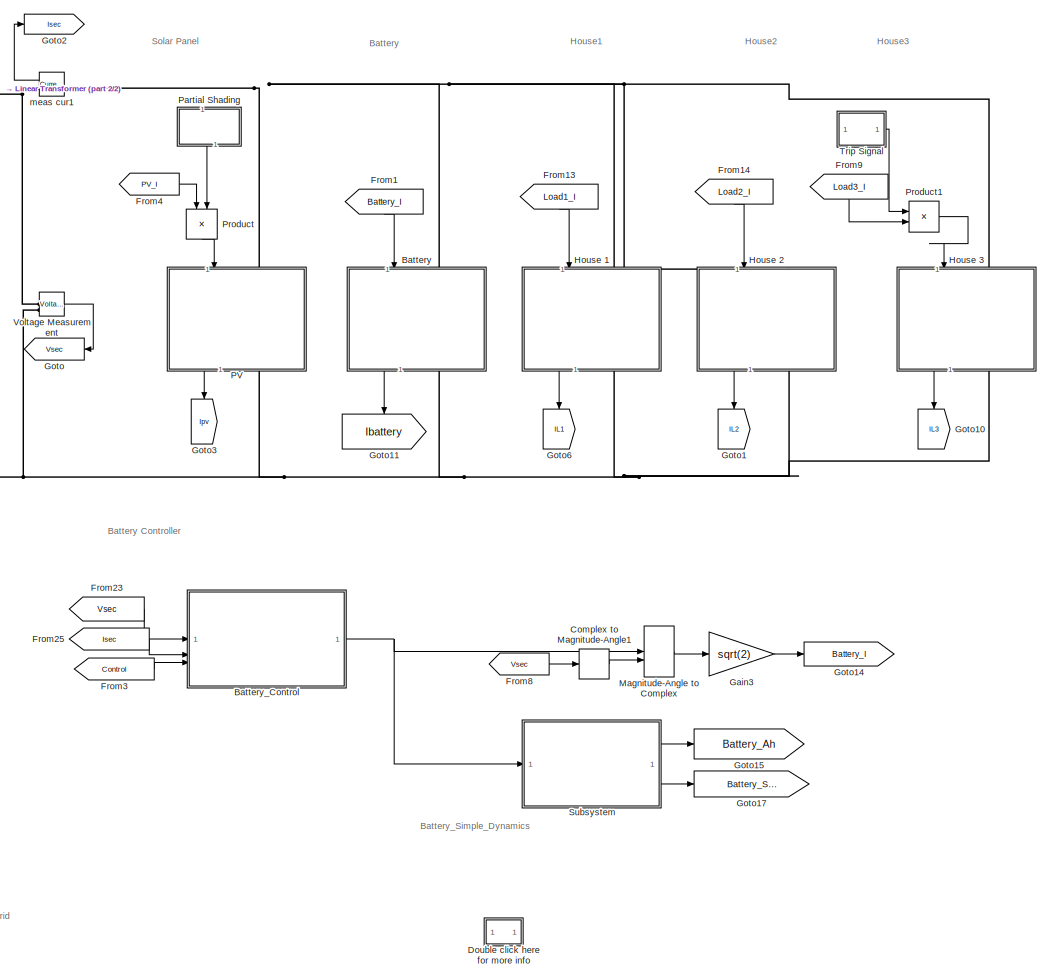
[diagram: root canvas - part 1/2, right side, full height]
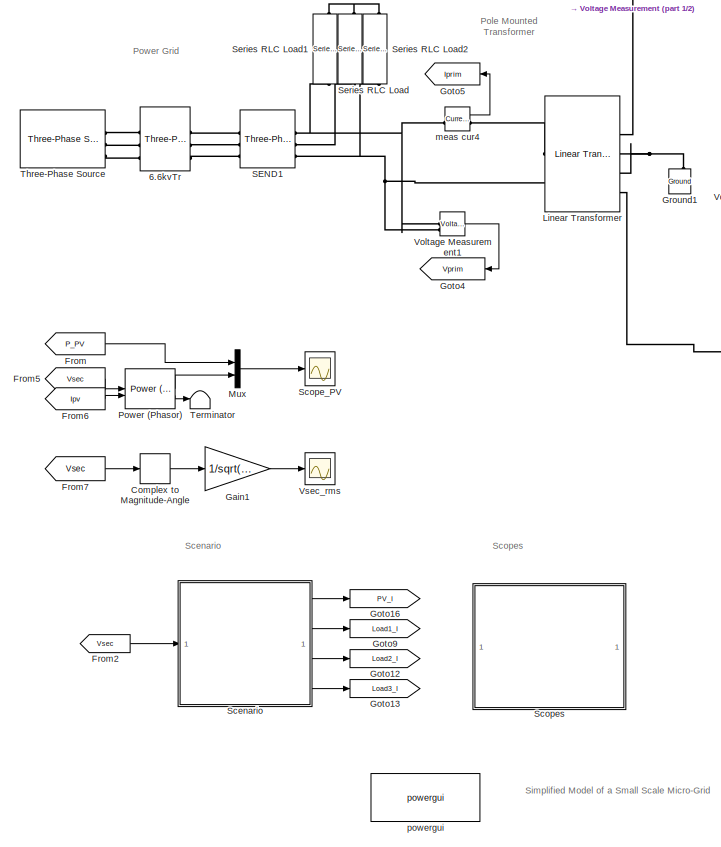
[diagram: root canvas - part 2/2, left side, full height]
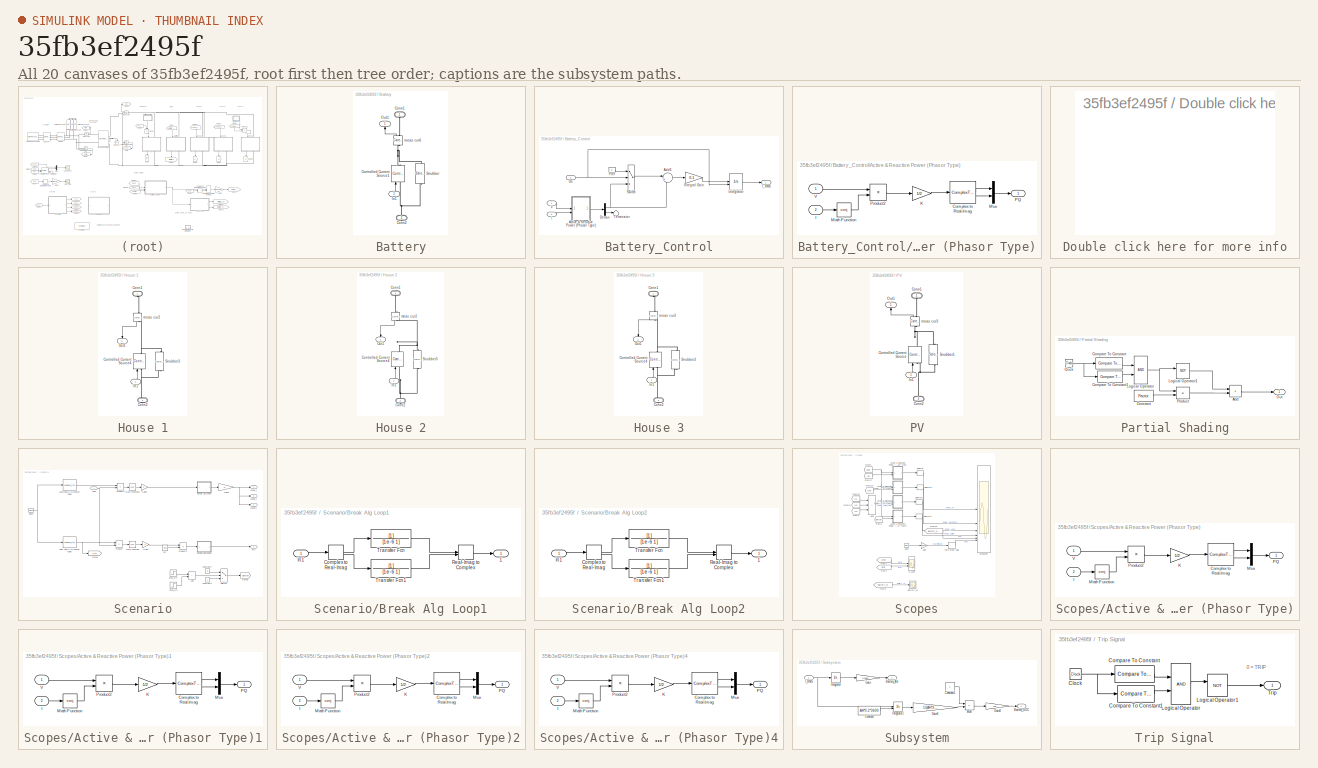
[diagram: thumbnail index - all 20 canvases of the model, root first then tree order]
MODEL slx_35fb3ef2495f
KIND model
CONFIG AbsTol = auto
CONFIG EnableMultiTasking = off
CONFIG FixedStep = 1/(1000)
CONFIG MaxStep = 60
CONFIG MinStep = auto
CONFIG PreLoadFcn = load('SmallScaleMicroGridSolarLoadData24h.mat')\n
CONFIG RelTol = 1e-4
CONFIG SampleTimeConstraint = Unconstrained
CONFIG SolverName = ode23tb
CONFIG StartTime = 0.0
CONFIG StopTime = 24*60*60
BLOCK [Reference] 6.6kvTr  REF=spsThreePhaseTransformerTwoWindingsLib/Three-Phase
Transformer
(Two Windings)
  SourceBlock = spsThreePhaseTransformerTwoWindingsLib/Three-Phase\nTransformer\n(Two Windings)
  SourceType = Three-Phase Transformer (Two Windings)
BLOCK [SubSystem] Battery
  NameLocation = left
BLOCK [PMIOPort] Battery/Conn1
  NameLocation = right
  Side = Left
BLOCK [PMIOPort] Battery/Conn2
  NameLocation = left
  Port = 2
  Side = Right
BLOCK [Reference] Battery/Controlled Current Source1  REF=spsControlledCurrentSourceLib/Controlled Current Source
  NameLocation = right
  SourceBlock = spsControlledCurrentSourceLib/Controlled Current Source
  SourceType = Controlled Current Source
BLOCK [Inport] Battery/In1
  NameLocation = right
BLOCK [Outport] Battery/Out1
  NameLocation = right
  VectorParamsAs1DForOutWhenUnconnected = off
BLOCK [Reference] Battery/Snubber  REF=spsSeriesRLCBranchLib/Series RLC Branch
  NameLocation = right
  SourceBlock = spsSeriesRLCBranchLib/Series RLC Branch
  SourceType = Series RLC Branch
BLOCK [Reference] Battery/meas cur6  REF=spsCurrentMeasurementLib/Current Measurement
  NameLocation = left
  SourceBlock = spsCurrentMeasurementLib/Current Measurement
  SourceType = Current Measurement
BLOCK [SubSystem] Battery_Control
BLOCK [SubSystem] Battery_Control/Active & Reactive Power (Phasor Type)
  DialogController = POWERSYS.PowerSysDialog
BLOCK [ComplexToRealImag] Battery_Control/Active & Reactive Power (Phasor Type)/Complex to Real-Imag
BLOCK [Inport] Battery_Control/Active & Reactive Power (Phasor Type)/I
  Port = 2
BLOCK [Gain] Battery_Control/Active & Reactive Power (Phasor Type)/K
  Gain = 1/2
  OutDataTypeStr = Inherit: Same as input
  ParamDataTypeStr = Inherit: Same as input
  SaturateOnIntegerOverflow = on
BLOCK [Math] Battery_Control/Active & Reactive Power (Phasor Type)/Math Function
  Operator = conj
  SignedPower = on
BLOCK [Mux] Battery_Control/Active & Reactive Power (Phasor Type)/Mux
  DisplayOption = bar
  Inputs = 2
BLOCK [Outport] Battery_Control/Active & Reactive Power (Phasor Type)/PQ
  VectorParamsAs1DForOutWhenUnconnected = off
BLOCK [Product] Battery_Control/Active & Reactive Power (Phasor Type)/Product2
  InputSameDT = on
  OutDataTypeStr = Inherit: Same as first input
  SaturateOnIntegerOverflow = on
BLOCK [Inport] Battery_Control/Active & Reactive Power (Phasor Type)/V
BLOCK [Sum] Battery_Control/Add6
  Inputs = |+-
BLOCK [Demux] Battery_Control/Demux
  Outputs = 2
BLOCK [Inport] Battery_Control/I
  Port = 2
BLOCK [Outport] Battery_Control/I_RMS
  InitialOutput = 0
  OutputWhenDisabled = reset
  VectorParamsAs1DForOutWhenUnconnected = off
BLOCK [Gain] Battery_Control/Integral Gain
  Gain = 0.1
BLOCK [Integrator] Battery_Control/Integrator
  ExternalReset = falling
  LimitOutput = on
  LowerSaturationLimit = -50
  UpperSaturationLimit = 50
BLOCK [Inport] Battery_Control/On
  Port = 3
BLOCK [Constant] Battery_Control/Pref
  NameLocation = top
  Value = 0
BLOCK [Switch] Battery_Control/Switch
  InputSameDT = off
  SaturateOnIntegerOverflow = off
  Threshold = 0.5
BLOCK [Terminator] Battery_Control/Terminator
BLOCK [Inport] Battery_Control/V
BLOCK [ComplexToMagnitudeAngle] Complex to Magnitude-Angle
  Output = Magnitude
BLOCK [ComplexToMagnitudeAngle] Complex to Magnitude-Angle1
  Output = Angle
BLOCK [SubSystem] Double click here for more info
  OpenFcn = showExample("simscapeelectricalsps/SmallScaleMicroGridExample")
BLOCK [From] From
  GotoTag = P_PV
  TagVisibility = global
BLOCK [From] From1
  GotoTag = Battery_I
  NameLocation = left
  TagVisibility = global
BLOCK [From] From13
  GotoTag = Load1_I
  NameLocation = left
  TagVisibility = global
BLOCK [From] From14
  GotoTag = Load2_I
  NameLocation = left
  TagVisibility = global
BLOCK [From] From2
  GotoTag = Vsec
  TagVisibility = global
BLOCK [From] From23
  GotoTag = Vsec
  TagVisibility = global
BLOCK [From] From25
  GotoTag = Isec
  TagVisibility = global
BLOCK [From] From3
  GotoTag = Control
  TagVisibility = global
BLOCK [From] From4
  GotoTag = PV_I
  TagVisibility = global
BLOCK [From] From5
  GotoTag = Vsec
  NameLocation = top
  TagVisibility = global
BLOCK [From] From6
  GotoTag = Ipv
  NameLocation = top
  TagVisibility = global
BLOCK [From] From7
  GotoTag = Vsec
  TagVisibility = global
BLOCK [From] From8
  GotoTag = Vsec
  NameLocation = top
  TagVisibility = global
BLOCK [From] From9
  GotoTag = Load3_I
  NameLocation = left
  TagVisibility = global
BLOCK [Gain] Gain1
  Gain = 1/sqrt(2)
BLOCK [Gain] Gain3
  Gain = sqrt(2)
BLOCK [Goto] Goto
  GotoTag = Vsec
  TagVisibility = global
BLOCK [Goto] Goto1
  GotoTag = IL2
  NameLocation = left
  TagVisibility = global
BLOCK [Goto] Goto10
  GotoTag = IL3
  NameLocation = left
  TagVisibility = global
BLOCK [Goto] Goto11
  GotoTag = Ibattery
  NameLocation = left
  TagVisibility = global
BLOCK [Goto] Goto12
  GotoTag = Load2_I
  TagVisibility = global
BLOCK [Goto] Goto13
  GotoTag = Load3_I
  TagVisibility = global
BLOCK [Goto] Goto14
  GotoTag = Battery_I
  TagVisibility = global
BLOCK [Goto] Goto15
  GotoTag = Battery_Ah
  TagVisibility = global
BLOCK [Goto] Goto16
  GotoTag = PV_I
  TagVisibility = global
BLOCK [Goto] Goto17
  GotoTag = Battery_SOC
  TagVisibility = global
BLOCK [Goto] Goto2
  GotoTag = Isec
  TagVisibility = global
BLOCK [Goto] Goto3
  GotoTag = Ipv
  NameLocation = left
  TagVisibility = global
BLOCK [Goto] Goto4
  GotoTag = Vprim
  TagVisibility = global
BLOCK [Goto] Goto5
  GotoTag = Iprim
  TagVisibility = global
BLOCK [Goto] Goto6
  GotoTag = IL1
  NameLocation = left
  TagVisibility = global
BLOCK [Goto] Goto9
  GotoTag = Load1_I
  TagVisibility = global
BLOCK [Reference] Ground1  REF=spsGroundLib/Ground
  NameLocation = right
  SourceBlock = spsGroundLib/Ground
  SourceType = Ground
BLOCK [SubSystem] House 1
  NameLocation = right
BLOCK [PMIOPort] House 1/Conn1
  NameLocation = right
  Side = Left
BLOCK [PMIOPort] House 1/Conn2
  NameLocation = left
  Port = 2
  Side = Right
BLOCK [Reference] House 1/Controlled Current Source4  REF=spsControlledCurrentSourceLib/Controlled Current Source
  NameLocation = right
  SourceBlock = spsControlledCurrentSourceLib/Controlled Current Source
  SourceType = Controlled Current Source
BLOCK [Inport] House 1/In1
  NameLocation = right
BLOCK [Outport] House 1/Out1
  NameLocation = right
  VectorParamsAs1DForOutWhenUnconnected = off
BLOCK [Reference] House 1/Snubber3  REF=spsSeriesRLCBranchLib/Series RLC Branch
  NameLocation = right
  SourceBlock = spsSeriesRLCBranchLib/Series RLC Branch
  SourceType = Series RLC Branch
BLOCK [Reference] House 1/meas cur2  REF=spsCurrentMeasurementLib/Current Measurement
  NameLocation = right
  SourceBlock = spsCurrentMeasurementLib/Current Measurement
  SourceType = Current Measurement
BLOCK [SubSystem] House 2
  NameLocation = right
BLOCK [PMIOPort] House 2/Conn1
  NameLocation = right
  Side = Left
BLOCK [PMIOPort] House 2/Conn2
  NameLocation = left
  Port = 2
  Side = Right
BLOCK [Reference] House 2/Controlled Current Source4  REF=spsControlledCurrentSourceLib/Controlled Current Source
  NameLocation = right
  SourceBlock = spsControlledCurrentSourceLib/Controlled Current Source
  SourceType = Controlled Current Source
BLOCK [Inport] House 2/In1
  NameLocation = right
BLOCK [Outport] House 2/Out1
  NameLocation = right
  VectorParamsAs1DForOutWhenUnconnected = off
BLOCK [Reference] House 2/Snubber3  REF=spsSeriesRLCBranchLib/Series RLC Branch
  NameLocation = right
  SourceBlock = spsSeriesRLCBranchLib/Series RLC Branch
  SourceType = Series RLC Branch
BLOCK [Reference] House 2/meas cur2  REF=spsCurrentMeasurementLib/Current Measurement
  NameLocation = right
  SourceBlock = spsCurrentMeasurementLib/Current Measurement
  SourceType = Current Measurement
BLOCK [SubSystem] House 3
  NameLocation = right
BLOCK [PMIOPort] House 3/Conn1
  NameLocation = right
  Side = Left
BLOCK [PMIOPort] House 3/Conn2
  NameLocation = left
  Port = 2
  Side = Right
BLOCK [Reference] House 3/Controlled Current Source4  REF=spsControlledCurrentSourceLib/Controlled Current Source
  NameLocation = right
  SourceBlock = spsControlledCurrentSourceLib/Controlled Current Source
  SourceType = Controlled Current Source
BLOCK [Inport] House 3/In1
  NameLocation = right
BLOCK [Outport] House 3/Out1
  NameLocation = right
  VectorParamsAs1DForOutWhenUnconnected = off
BLOCK [Reference] House 3/Snubber3  REF=spsSeriesRLCBranchLib/Series RLC Branch
  NameLocation = right
  SourceBlock = spsSeriesRLCBranchLib/Series RLC Branch
  SourceType = Series RLC Branch
BLOCK [Reference] House 3/meas cur2  REF=spsCurrentMeasurementLib/Current Measurement
  NameLocation = right
  SourceBlock = spsCurrentMeasurementLib/Current Measurement
  SourceType = Current Measurement
BLOCK [Reference] Linear Transformer  REF=spsLinearTransformerLib/Linear Transformer
  SourceBlock = spsLinearTransformerLib/Linear Transformer
  SourceType = Linear Transformer
BLOCK [MagnitudeAngleToComplex] Magnitude-Angle to Complex
BLOCK [Mux] Mux
  DisplayOption = bar
  Inputs = 2
BLOCK [SubSystem] PV
  NameLocation = left
BLOCK [PMIOPort] PV/Conn1
  NameLocation = right
  Side = Left
BLOCK [PMIOPort] PV/Conn2
  NameLocation = left
  Port = 2
  Side = Right
BLOCK [Reference] PV/Controlled Current Source  REF=spsControlledCurrentSourceLib/Controlled Current Source
  NameLocation = right
  SourceBlock = spsControlledCurrentSourceLib/Controlled Current Source
  SourceType = Controlled Current Source
BLOCK [Inport] PV/In1
  NameLocation = right
BLOCK [Outport] PV/Out1
  NameLocation = right
  VectorParamsAs1DForOutWhenUnconnected = off
BLOCK [Reference] PV/Snubber1  REF=spsSeriesRLCBranchLib/Series RLC Branch
  NameLocation = right
  SourceBlock = spsSeriesRLCBranchLib/Series RLC Branch
  SourceType = Series RLC Branch
BLOCK [Reference] PV/meas cur3  REF=spsCurrentMeasurementLib/Current Measurement
  NameLocation = left
  SourceBlock = spsCurrentMeasurementLib/Current Measurement
  SourceType = Current Measurement
BLOCK [SubSystem] Partial Shading
  NameLocation = left
BLOCK [Sum] Partial Shading/Add
  IconShape = rectangular
BLOCK [Clock] Partial Shading/Clock
  Decimation = 1
BLOCK [Reference] Partial Shading/Compare To Constant  REF=simulink/Logic and Bit
Operations/Compare
To Constant
  SourceBlock = simulink/Logic and Bit\nOperations/Compare\nTo Constant
  SourceType = Compare To Constant
BLOCK [Reference] Partial Shading/Compare To Constant1  REF=simulink/Logic and Bit
Operations/Compare
To Constant
  SourceBlock = simulink/Logic and Bit\nOperations/Compare\nTo Constant
  SourceType = Compare To Constant
BLOCK [Constant] Partial Shading/Constant
  Value = Factor
BLOCK [Logic] Partial Shading/Logical Operator
  AllPortsSameDT = off
  OutDataTypeStr = float('double')
BLOCK [Logic] Partial Shading/Logical Operator1
  AllPortsSameDT = off
  Operator = NOT
  OutDataTypeStr = float('double')
BLOCK [Outport] Partial Shading/Out
  VectorParamsAs1DForOutWhenUnconnected = off
BLOCK [Product] Partial Shading/Product
BLOCK [Reference] Power (Phasor)  REF=spsPowerPhasorLib/Power
(Phasor)
  SourceBlock = spsPowerPhasorLib/Power\n(Phasor)
  SourceType = Power (Phasor)
BLOCK [Product] Product
  NameLocation = left
BLOCK [Product] Product1
BLOCK [Reference] SEND1  REF=spsThreePhasePISectionLineLib/Three-Phase
PI Section Line
  AttributesFormatString = \n
  SourceBlock = spsThreePhasePISectionLineLib/Three-Phase\nPI Section Line
  SourceType = Three-Phase PI Section Line
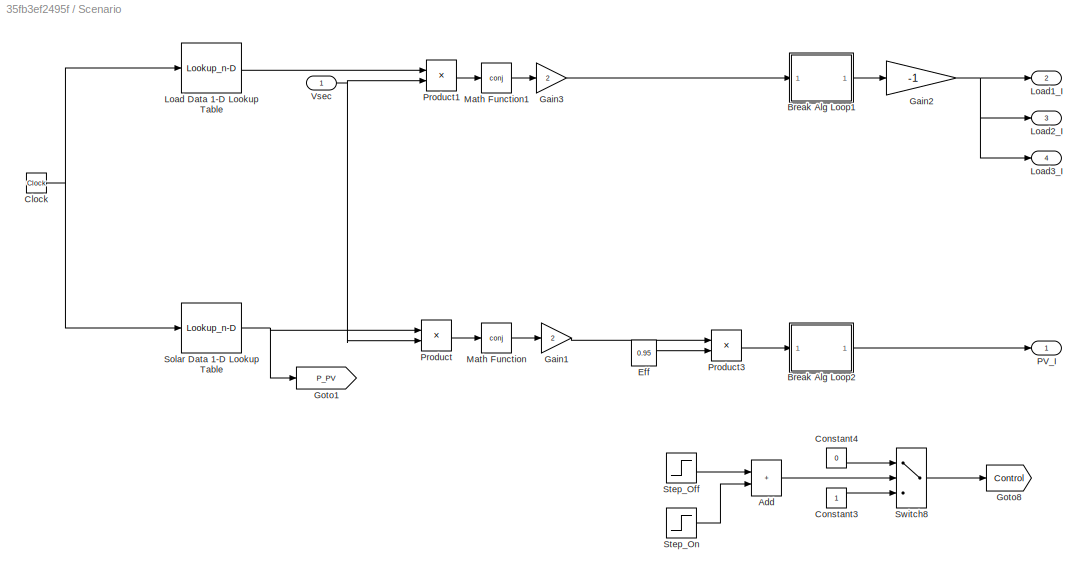
BLOCK [SubSystem] Scenario
BLOCK [Sum] Scenario/Add
  IconShape = rectangular
BLOCK [SubSystem] Scenario/Break Alg Loop1
BLOCK [Outport] Scenario/Break Alg Loop1/1 
BLOCK [ComplexToRealImag] Scenario/Break Alg Loop1/Complex to Real-Imag
BLOCK [Inport] Scenario/Break Alg Loop1/In1
BLOCK [RealImagToComplex] Scenario/Break Alg Loop1/Real-Imag to Complex
BLOCK [TransferFcn] Scenario/Break Alg Loop1/Transfer Fcn
  Denominator = [1e-6 1]
BLOCK [TransferFcn] Scenario/Break Alg Loop1/Transfer Fcn1
  Denominator = [1e-6 1]
BLOCK [SubSystem] Scenario/Break Alg Loop2
BLOCK [Outport] Scenario/Break Alg Loop2/1 
BLOCK [ComplexToRealImag] Scenario/Break Alg Loop2/Complex to Real-Imag
BLOCK [Inport] Scenario/Break Alg Loop2/In1
BLOCK [RealImagToComplex] Scenario/Break Alg Loop2/Real-Imag to Complex
BLOCK [TransferFcn] Scenario/Break Alg Loop2/Transfer Fcn
  Denominator = [1e-6 1]
BLOCK [TransferFcn] Scenario/Break Alg Loop2/Transfer Fcn1
  Denominator = [1e-6 1]
BLOCK [Clock] Scenario/Clock
  Decimation = 1
BLOCK [Constant] Scenario/Constant3
BLOCK [Constant] Scenario/Constant4
  Value = 0
BLOCK [Constant] Scenario/Eff
  Value = 0.95
BLOCK [Gain] Scenario/Gain1
  Gain = 2
BLOCK [Gain] Scenario/Gain2
  Gain = -1
BLOCK [Gain] Scenario/Gain3
  Gain = 2
BLOCK [Goto] Scenario/Goto1
  GotoTag = P_PV
  TagVisibility = global
BLOCK [Goto] Scenario/Goto8
  GotoTag = Control
  TagVisibility = global
BLOCK [Lookup_n-D] Scenario/Load Data 1-D Lookup Table
  BeginIndexSearchUsingPreviousIndexResult = on
  BreakpointsForDimension1 = HPT_1min
  InputPortMap = u0
  InternalRulePriority = Speed
  NumberOfTableDimensions = 1
  RndMeth = Simplest
  Table = HPD_1min
BLOCK [Outport] Scenario/Load1_I
  Port = 2
  VectorParamsAs1DForOutWhenUnconnected = off
BLOCK [Outport] Scenario/Load2_I
  Port = 3
  VectorParamsAs1DForOutWhenUnconnected = off
BLOCK [Outport] Scenario/Load3_I
  Port = 4
  VectorParamsAs1DForOutWhenUnconnected = off
BLOCK [Math] Scenario/Math Function
  Operator = conj
BLOCK [Math] Scenario/Math Function1
  Operator = conj
BLOCK [Outport] Scenario/PV_I
  VectorParamsAs1DForOutWhenUnconnected = off
BLOCK [Product] Scenario/Product
  Inputs = */
BLOCK [Product] Scenario/Product1
  Inputs = */
BLOCK [Product] Scenario/Product3
  Inputs = **
BLOCK [Lookup_n-D] Scenario/Solar Data 1-D Lookup Table
  BeginIndexSearchUsingPreviousIndexResult = on
  BreakpointsForDimension1 = SPT_1min
  InputPortMap = u0
  InternalRulePriority = Speed
  NumberOfTableDimensions = 1
  RndMeth = Simplest
  Table = SPD_1min
BLOCK [Step] Scenario/Step_Off
  SampleTime = 0
  Time = 12*60*60
BLOCK [Step] Scenario/Step_On
  After = -1
  SampleTime = 0
  Time = 18*60*60
BLOCK [Switch] Scenario/Switch8
  InputSameDT = off
  SaturateOnIntegerOverflow = off
  Threshold = 1
BLOCK [Inport] Scenario/Vsec
BLOCK [Scope] Scope_PV
  Floating = off
  NumInputPorts = 1
  ScopeSpecificationString = Simulink.scopes.TimeScopeBlockCfg('CurrentConfiguration', extmgr.ConfigurationSet(extmgr.Configuration('Core','General UI',true),extmgr.Configuration('Core','Source UI',true),extmgr.Configuration('Sources','WiredSimulink',true,'DataLoggingVariableName','ScopeData1'),extmgr.Configuration('Visuals','Time Domain',true,'SerializedDisplays',{struct('MinYLimReal','-625.04561','MaxYLimReal','5625.00507',...<+1562ch>
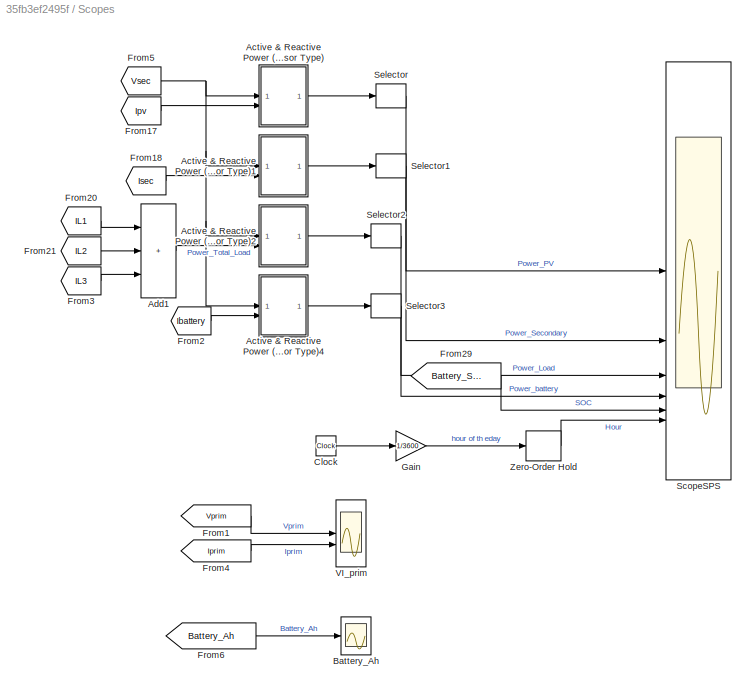
BLOCK [SubSystem] Scopes
BLOCK [SubSystem] Scopes/Active & Reactive Power (Phasor Type)
  DialogController = POWERSYS.PowerSysDialog
BLOCK [ComplexToRealImag] Scopes/Active & Reactive Power (Phasor Type)/Complex to Real-Imag
BLOCK [Inport] Scopes/Active & Reactive Power (Phasor Type)/I
  Port = 2
BLOCK [Gain] Scopes/Active & Reactive Power (Phasor Type)/K
  Gain = 1/2
  OutDataTypeStr = Inherit: Same as input
  ParamDataTypeStr = Inherit: Same as input
  SaturateOnIntegerOverflow = on
BLOCK [Math] Scopes/Active & Reactive Power (Phasor Type)/Math Function
  Operator = conj
  SignedPower = on
BLOCK [Mux] Scopes/Active & Reactive Power (Phasor Type)/Mux
  DisplayOption = bar
  Inputs = 2
BLOCK [Outport] Scopes/Active & Reactive Power (Phasor Type)/PQ
  VectorParamsAs1DForOutWhenUnconnected = off
BLOCK [Product] Scopes/Active & Reactive Power (Phasor Type)/Product2
  InputSameDT = on
  OutDataTypeStr = Inherit: Same as first input
  SaturateOnIntegerOverflow = on
BLOCK [Inport] Scopes/Active & Reactive Power (Phasor Type)/V
BLOCK [SubSystem] Scopes/Active & Reactive Power (Phasor Type)1
  DialogController = POWERSYS.PowerSysDialog
BLOCK [ComplexToRealImag] Scopes/Active & Reactive Power (Phasor Type)1/Complex to Real-Imag
BLOCK [Inport] Scopes/Active & Reactive Power (Phasor Type)1/I
  Port = 2
BLOCK [Gain] Scopes/Active & Reactive Power (Phasor Type)1/K
  Gain = 1/2
  OutDataTypeStr = Inherit: Same as input
  ParamDataTypeStr = Inherit: Same as input
  SaturateOnIntegerOverflow = on
BLOCK [Math] Scopes/Active & Reactive Power (Phasor Type)1/Math Function
  Operator = conj
  SignedPower = on
BLOCK [Mux] Scopes/Active & Reactive Power (Phasor Type)1/Mux
  DisplayOption = bar
  Inputs = 2
BLOCK [Outport] Scopes/Active & Reactive Power (Phasor Type)1/PQ
  VectorParamsAs1DForOutWhenUnconnected = off
BLOCK [Product] Scopes/Active & Reactive Power (Phasor Type)1/Product2
  InputSameDT = on
  OutDataTypeStr = Inherit: Same as first input
  SaturateOnIntegerOverflow = on
BLOCK [Inport] Scopes/Active & Reactive Power (Phasor Type)1/V
BLOCK [SubSystem] Scopes/Active & Reactive Power (Phasor Type)2
  DialogController = POWERSYS.PowerSysDialog
BLOCK [ComplexToRealImag] Scopes/Active & Reactive Power (Phasor Type)2/Complex to Real-Imag
BLOCK [Inport] Scopes/Active & Reactive Power (Phasor Type)2/I
  Port = 2
BLOCK [Gain] Scopes/Active & Reactive Power (Phasor Type)2/K
  Gain = 1/2
  OutDataTypeStr = Inherit: Same as input
  ParamDataTypeStr = Inherit: Same as input
  SaturateOnIntegerOverflow = on
BLOCK [Math] Scopes/Active & Reactive Power (Phasor Type)2/Math Function
  Operator = conj
  SignedPower = on
BLOCK [Mux] Scopes/Active & Reactive Power (Phasor Type)2/Mux
  DisplayOption = bar
  Inputs = 2
BLOCK [Outport] Scopes/Active & Reactive Power (Phasor Type)2/PQ
  VectorParamsAs1DForOutWhenUnconnected = off
BLOCK [Product] Scopes/Active & Reactive Power (Phasor Type)2/Product2
  InputSameDT = on
  OutDataTypeStr = Inherit: Same as first input
  SaturateOnIntegerOverflow = on
BLOCK [Inport] Scopes/Active & Reactive Power (Phasor Type)2/V
BLOCK [SubSystem] Scopes/Active & Reactive Power (Phasor Type)4
  DialogController = POWERSYS.PowerSysDialog
BLOCK [ComplexToRealImag] Scopes/Active & Reactive Power (Phasor Type)4/Complex to Real-Imag
BLOCK [Inport] Scopes/Active & Reactive Power (Phasor Type)4/I
  Port = 2
BLOCK [Gain] Scopes/Active & Reactive Power (Phasor Type)4/K
  Gain = 1/2
  OutDataTypeStr = Inherit: Same as input
  ParamDataTypeStr = Inherit: Same as input
  SaturateOnIntegerOverflow = on
BLOCK [Math] Scopes/Active & Reactive Power (Phasor Type)4/Math Function
  Operator = conj
  SignedPower = on
BLOCK [Mux] Scopes/Active & Reactive Power (Phasor Type)4/Mux
  DisplayOption = bar
  Inputs = 2
BLOCK [Outport] Scopes/Active & Reactive Power (Phasor Type)4/PQ
  VectorParamsAs1DForOutWhenUnconnected = off
BLOCK [Product] Scopes/Active & Reactive Power (Phasor Type)4/Product2
  InputSameDT = on
  OutDataTypeStr = Inherit: Same as first input
  SaturateOnIntegerOverflow = on
BLOCK [Inport] Scopes/Active & Reactive Power (Phasor Type)4/V
BLOCK [Sum] Scopes/Add1
  IconShape = rectangular
  Inputs = +++
BLOCK [Scope] Scopes/Battery_Ah
  Floating = off
  NumInputPorts = 1
  ScopeSpecificationString = C++SS(StrPVP('Location','[535, 288, 1255, 995]'),StrPVP('Open','off'),StrPVP('ZoomMode','yonly'),MxPVP('AxesTitles',54,'struct(''axes1'',''%<SignalLabel>'')'),MxPVP('ScopeGraphics',57,'struct(''FigureColor'',''[0.5 0.5 0.5]'',''AxesColor'',''[0 0 0]'',''AxesTickColor'',''[1 1 1]'',''LineColors'',''[1 1 0;1 0 1;0 1 1;1 0 0;0 1 0;0 0 1]'',''LineStyles'',''-|-|-|-|-|-'',''LineWidths'',''[0.5 0.5 0.5 ...<+341ch>
BLOCK [Clock] Scopes/Clock
  Decimation = 1
BLOCK [From] Scopes/From1
  GotoTag = Vprim
  TagVisibility = global
BLOCK [From] Scopes/From17
  GotoTag = Ipv
  TagVisibility = global
BLOCK [From] Scopes/From18
  GotoTag = Isec
  TagVisibility = global
BLOCK [From] Scopes/From2
  GotoTag = Ibattery
  TagVisibility = global
BLOCK [From] Scopes/From20
  GotoTag = IL1
  TagVisibility = global
BLOCK [From] Scopes/From21
  GotoTag = IL2
  TagVisibility = global
BLOCK [From] Scopes/From29
  GotoTag = Battery_SOC
  TagVisibility = global
BLOCK [From] Scopes/From3
  GotoTag = IL3
  TagVisibility = global
BLOCK [From] Scopes/From4
  GotoTag = Iprim
  TagVisibility = global
BLOCK [From] Scopes/From5
  GotoTag = Vsec
  TagVisibility = global
BLOCK [From] Scopes/From6
  GotoTag = Battery_Ah
  TagVisibility = global
BLOCK [Gain] Scopes/Gain
  Gain = 1/3600
BLOCK [Scope] Scopes/ScopeSPS
  Floating = off
  NumInputPorts = 6
  ScopeSpecificationString = Simulink.scopes.TimeScopeBlockCfg('CurrentConfiguration', extmgr.ConfigurationSet(extmgr.Configuration('Core','General UI',true),extmgr.Configuration('Core','Source UI',true),extmgr.Configuration('Sources','WiredSimulink',true,'DataLogging',true,'DataLoggingVariableName','ScopeSPS','DataLoggingSaveFormat','StructureWithTime','DataLoggingDecimation','1','DataLoggingDecimateData',true),extmgr.Config...<+5716ch>
BLOCK [Selector] Scopes/Selector
  IndexOptions = Index vector (dialog)
  Indices = 1
  InputPortWidth = 2
  OutputSizes = 1
BLOCK [Selector] Scopes/Selector1
  IndexOptions = Index vector (dialog)
  Indices = 1
  InputPortWidth = 2
  OutputSizes = 1
BLOCK [Selector] Scopes/Selector2
  IndexOptions = Index vector (dialog)
  Indices = 1
  InputPortWidth = 2
  OutputSizes = 1
BLOCK [Selector] Scopes/Selector3
  IndexOptions = Index vector (dialog)
  Indices = 1
  InputPortWidth = 2
  OutputSizes = 1
BLOCK [Scope] Scopes/VI_prim
  Floating = off
  NumInputPorts = 2
  ScopeSpecificationString = C++SS(StrPVP('Location','[486, 109, 1206, 1034]'),StrPVP('Open','off'),StrPVP('ZoomMode','yonly'),MxPVP('AxesTitles',54,'struct(''axes1'',''%<SignalLabel>'',''axes2'',''%<SignalLabel>'')'),MxPVP('ScopeGraphics',57,'struct(''FigureColor'',''[0.5 0.5 0.5]'',''AxesColor'',''[0 0 0]'',''AxesTickColor'',''[1 1 1]'',''LineColors'',''[1 1 0;1 0 1;0 1 1;1 0 0;0 1 0;0 0 1]'',''LineStyles'',''-|-|-|-|-|-'',...<+346ch>
BLOCK [ZeroOrderHold] Scopes/Zero-Order Hold
  SampleTime = 3600
BLOCK [Reference] Series RLC Load  REF=spsSeriesRLCLoadLib/Series RLC Load
  AttributesFormatString = \n
  NameLocation = left
  SourceBlock = spsSeriesRLCLoadLib/Series RLC Load
  SourceType = Series RLC Load
BLOCK [Reference] Series RLC Load1  REF=spsSeriesRLCLoadLib/Series RLC Load
  AttributesFormatString = \n
  NameLocation = left
  SourceBlock = spsSeriesRLCLoadLib/Series RLC Load
  SourceType = Series RLC Load
BLOCK [Reference] Series RLC Load2  REF=spsSeriesRLCLoadLib/Series RLC Load
  AttributesFormatString = \n
  NameLocation = left
  SourceBlock = spsSeriesRLCLoadLib/Series RLC Load
  SourceType = Series RLC Load
BLOCK [SubSystem] Subsystem
BLOCK [Sum] Subsystem/Add
  IconShape = rectangular
  Inputs = +-
BLOCK [Outport] Subsystem/Battery_Ah
  VectorParamsAs1DForOutWhenUnconnected = off
BLOCK [Outport] Subsystem/Battery_SOC
  Port = 2
  VectorParamsAs1DForOutWhenUnconnected = off
BLOCK [Constant] Subsystem/Constant
  Value = AH*0.2*3600
BLOCK [Constant] Subsystem/Constant1
BLOCK [Gain] Subsystem/Gain
  Gain = 1/3600
BLOCK [Gain] Subsystem/Gain3
  Gain = 1/(AH*3600)
BLOCK [Gain] Subsystem/Gain8
  Gain = 100
BLOCK [Inport] Subsystem/I_RMS
BLOCK [Integrator] Subsystem/Integrator
BLOCK [Integrator] Subsystem/Integrator1
  InitialConditionSource = external
BLOCK [Terminator] Terminator
BLOCK [Reference] Three-Phase Source  REF=spsThreePhaseSourceLib/Three-Phase Source
  SourceBlock = spsThreePhaseSourceLib/Three-Phase Source
  SourceType = Three-Phase Source
BLOCK [SubSystem] Trip Signal
BLOCK [Clock] Trip Signal/Clock
  Decimation = 1
BLOCK [Reference] Trip Signal/Compare To Constant  REF=simulink/Logic and Bit
Operations/Compare
To Constant
  SourceBlock = simulink/Logic and Bit\nOperations/Compare\nTo Constant
  SourceType = Compare To Constant
BLOCK [Reference] Trip Signal/Compare To Constant1  REF=simulink/Logic and Bit
Operations/Compare
To Constant
  SourceBlock = simulink/Logic and Bit\nOperations/Compare\nTo Constant
  SourceType = Compare To Constant
BLOCK [Logic] Trip Signal/Logical Operator
  AllPortsSameDT = off
  OutDataTypeStr = float('double')
BLOCK [Logic] Trip Signal/Logical Operator1
  AllPortsSameDT = off
  Operator = NOT
  OutDataTypeStr = float('double')
BLOCK [Outport] Trip Signal/Trip
  VectorParamsAs1DForOutWhenUnconnected = off
BLOCK [Reference] Voltage Measurement  REF=spsVoltageMeasurementLib/Voltage Measurement
  SourceBlock = spsVoltageMeasurementLib/Voltage Measurement
  SourceType = Voltage Measurement
BLOCK [Reference] Voltage Measurement1  REF=spsVoltageMeasurementLib/Voltage Measurement
  SourceBlock = spsVoltageMeasurementLib/Voltage Measurement
  SourceType = Voltage Measurement
BLOCK [Scope] Vsec_rms
  Floating = off
  NumInputPorts = 1
  ScopeSpecificationString = Simulink.scopes.TimeScopeBlockCfg('CurrentConfiguration', extmgr.ConfigurationSet(extmgr.Configuration('Core','General UI',true),extmgr.Configuration('Core','Source UI',true),extmgr.Configuration('Sources','WiredSimulink',true,'DataLoggingVariableName','ScopeData2'),extmgr.Configuration('Visuals','Time Domain',true,'SerializedDisplays',{struct('MinYLimReal','201.14864','MaxYLimReal','201.15569','Y...<+1467ch>
BLOCK [Reference] meas cur1  REF=spsCurrentMeasurementLib/Current Measurement
  SourceBlock = spsCurrentMeasurementLib/Current Measurement
  SourceType = Current Measurement
BLOCK [Reference] meas cur4  REF=spsCurrentMeasurementLib/Current Measurement
  NameLocation = top
  SourceBlock = spsCurrentMeasurementLib/Current Measurement
  SourceType = Current Measurement
BLOCK [Reference] powergui  REF=spspowerguiLib/powergui
  SourceBlock = spspowerguiLib/powergui
  SourceType = PSB option menu block
ANNOTATION (root): Battery
ANNOTATION (root): Battery Controller
ANNOTATION (root): Battery_Simple_Dynamics
ANNOTATION (root): House1
ANNOTATION (root): House2
ANNOTATION (root): House3
ANNOTATION (root): Pole Mounted Transformer
ANNOTATION (root): Power Grid
ANNOTATION (root): Scenario
ANNOTATION (root): Scopes
ANNOTATION (root): Simplified Model of a Small Scale Micro-Grid
ANNOTATION (root): Solar Panel
ANNOTATION Trip Signal: 0 = TRIP
LINE Battery/In1:1 -> Battery/Controlled Current Source1:1
LINE Battery/meas cur6:1 -> Battery/Out1:1
LINE Battery:1 -> Goto11:1
LINE Battery_Control/Active & Reactive Power (Phasor Type):1 -> Battery_Control/Demux:1
LINE Battery_Control/Add6:1 -> Battery_Control/Integral Gain:1
NET Battery_Control/Demux:1 -> Battery_Control/Add6:2, Battery_Control/Switch:3
LINE Battery_Control/Demux:2 -> Battery_Control/Terminator:1
LINE Battery_Control/I:1 -> Battery_Control/Active & Reactive Power (Phasor Type):2
LINE Battery_Control/Integral Gain:1 -> Battery_Control/Integrator:1
LINE Battery_Control/Integrator:1 -> Battery_Control/I_RMS:1
NET Battery_Control/On:1 -> Battery_Control/Integrator:2, Battery_Control/Switch:2
LINE Battery_Control/Pref:1 -> Battery_Control/Switch:1
LINE Battery_Control/Switch:1 -> Battery_Control/Add6:1
LINE Battery_Control/V:1 -> Battery_Control/Active & Reactive Power (Phasor Type):1
NET Battery_Control:1 -> Magnitude-Angle to Complex:1, Subsystem:1
LINE Complex to Magnitude-Angle1:1 -> Magnitude-Angle to Complex:2
LINE Complex to Magnitude-Angle:1 -> Gain1:1
LINE From13:1 -> House 1:1
LINE From14:1 -> House 2:1
LINE From1:1 -> Battery:1
LINE From23:1 -> Battery_Control:1
LINE From25:1 -> Battery_Control:2
LINE From2:1 -> Scenario:1
LINE From3:1 -> Battery_Control:3
LINE From4:1 -> Product:1
LINE From5:1 -> Power (Phasor):1
LINE From6:1 -> Power (Phasor):2
LINE From7:1 -> Complex to Magnitude-Angle:1
LINE From8:1 -> Complex to Magnitude-Angle1:1
LINE From9:1 -> Product1:2
LINE From:1 -> Mux:1
LINE Gain1:1 -> Vsec_rms:1
LINE Gain3:1 -> Goto14:1
LINE House 1/In1:1 -> House 1/Controlled Current Source4:1
LINE House 1/meas cur2:1 -> House 1/Out1:1
LINE House 1:1 -> Goto6:1
LINE House 2/In1:1 -> House 2/Controlled Current Source4:1
LINE House 2/meas cur2:1 -> House 2/Out1:1
LINE House 2:1 -> Goto1:1
LINE House 3/In1:1 -> House 3/Controlled Current Source4:1
LINE House 3/meas cur2:1 -> House 3/Out1:1
LINE House 3:1 -> Goto10:1
LINE Magnitude-Angle to Complex:1 -> Gain3:1
LINE Mux:1 -> Scope_PV:1
LINE PV/In1:1 -> PV/Controlled Current Source:1
LINE PV/meas cur3:1 -> PV/Out1:1
LINE PV:1 -> Goto3:1
LINE Partial Shading/Add:1 -> Partial Shading/Out:1
NET Partial Shading/Clock:1 -> Partial Shading/Compare To Constant1:1, Partial Shading/Compare To Constant:1
LINE Partial Shading/Compare To Constant1:1 -> Partial Shading/Logical Operator:2
LINE Partial Shading/Compare To Constant:1 -> Partial Shading/Logical Operator:1
LINE Partial Shading/Constant:1 -> Partial Shading/Product:2
LINE Partial Shading/Logical Operator1:1 -> Partial Shading/Add:1
NET Partial Shading/Logical Operator:1 -> Partial Shading/Logical Operator1:1, Partial Shading/Product:1
LINE Partial Shading/Product:1 -> Partial Shading/Add:2
LINE Partial Shading:1 -> Product:2
LINE Power (Phasor):1 -> Mux:2
LINE Power (Phasor):2 -> Terminator:1
LINE Product1:1 -> House 3:1
LINE Product:1 -> PV:1
LINE Scenario/Add:1 -> Scenario/Switch8:2
LINE Scenario/Break Alg Loop1/Complex to Real-Imag:1 -> Scenario/Break Alg Loop1/Transfer Fcn:1
LINE Scenario/Break Alg Loop1/Complex to Real-Imag:2 -> Scenario/Break Alg Loop1/Transfer Fcn1:1
LINE Scenario/Break Alg Loop1/In1:1 -> Scenario/Break Alg Loop1/Complex to Real-Imag:1
LINE Scenario/Break Alg Loop1/Real-Imag to Complex:1 -> Scenario/Break Alg Loop1/1 :1
LINE Scenario/Break Alg Loop1/Transfer Fcn1:1 -> Scenario/Break Alg Loop1/Real-Imag to Complex:2
LINE Scenario/Break Alg Loop1/Transfer Fcn:1 -> Scenario/Break Alg Loop1/Real-Imag to Complex:1
LINE Scenario/Break Alg Loop1:1 -> Scenario/Gain2:1
LINE Scenario/Break Alg Loop2/Complex to Real-Imag:1 -> Scenario/Break Alg Loop2/Transfer Fcn:1
LINE Scenario/Break Alg Loop2/Complex to Real-Imag:2 -> Scenario/Break Alg Loop2/Transfer Fcn1:1
LINE Scenario/Break Alg Loop2/In1:1 -> Scenario/Break Alg Loop2/Complex to Real-Imag:1
LINE Scenario/Break Alg Loop2/Real-Imag to Complex:1 -> Scenario/Break Alg Loop2/1 :1
LINE Scenario/Break Alg Loop2/Transfer Fcn1:1 -> Scenario/Break Alg Loop2/Real-Imag to Complex:2
LINE Scenario/Break Alg Loop2/Transfer Fcn:1 -> Scenario/Break Alg Loop2/Real-Imag to Complex:1
LINE Scenario/Break Alg Loop2:1 -> Scenario/PV_I:1
NET Scenario/Clock:1 -> Scenario/Load Data 1-D Lookup Table:1, Scenario/Solar Data 1-D Lookup Table:1
LINE Scenario/Constant3:1 -> Scenario/Switch8:3
LINE Scenario/Constant4:1 -> Scenario/Switch8:1
LINE Scenario/Eff:1 -> Scenario/Product3:2
LINE Scenario/Gain1:1 -> Scenario/Product3:1
NET Scenario/Gain2:1 -> Scenario/Load1_I:1, Scenario/Load2_I:1, Scenario/Load3_I:1
LINE Scenario/Gain3:1 -> Scenario/Break Alg Loop1:1
LINE Scenario/Load Data 1-D Lookup Table:1 -> Scenario/Product1:1
LINE Scenario/Math Function1:1 -> Scenario/Gain3:1
LINE Scenario/Math Function:1 -> Scenario/Gain1:1
LINE Scenario/Product1:1 -> Scenario/Math Function1:1
LINE Scenario/Product3:1 -> Scenario/Break Alg Loop2:1
LINE Scenario/Product:1 -> Scenario/Math Function:1
NET Scenario/Solar Data 1-D Lookup Table:1 -> Scenario/Goto1:1, Scenario/Product:1
LINE Scenario/Step_Off:1 -> Scenario/Add:1
LINE Scenario/Step_On:1 -> Scenario/Add:2
LINE Scenario/Switch8:1 -> Scenario/Goto8:1
NET Scenario/Vsec:1 -> Scenario/Product1:2, Scenario/Product:2
LINE Scenario:1 -> Goto16:1
LINE Scenario:2 -> Goto9:1
LINE Scenario:3 -> Goto12:1
LINE Scenario:4 -> Goto13:1
LINE Scopes/Active & Reactive Power (Phasor Type)1:1 -> Scopes/Selector1:1
LINE Scopes/Active & Reactive Power (Phasor Type)2:1 -> Scopes/Selector2:1
LINE Scopes/Active & Reactive Power (Phasor Type)4:1 -> Scopes/Selector3:1
LINE Scopes/Active & Reactive Power (Phasor Type):1 -> Scopes/Selector:1
LINE Scopes/Add1:1 -> Scopes/Active & Reactive Power (Phasor Type)2:2
LINE Scopes/Clock:1 -> Scopes/Gain:1
LINE Scopes/From17:1 -> Scopes/Active & Reactive Power (Phasor Type):2
LINE Scopes/From18:1 -> Scopes/Active & Reactive Power (Phasor Type)1:2
LINE Scopes/From1:1 -> Scopes/VI_prim:1
LINE Scopes/From20:1 -> Scopes/Add1:1
LINE Scopes/From21:1 -> Scopes/Add1:2
LINE Scopes/From29:1 -> Scopes/ScopeSPS:5
LINE Scopes/From2:1 -> Scopes/Active & Reactive Power (Phasor Type)4:2
LINE Scopes/From3:1 -> Scopes/Add1:3
LINE Scopes/From4:1 -> Scopes/VI_prim:2
NET Scopes/From5:1 -> Scopes/Active & Reactive Power (Phasor Type)1:1, Scopes/Active & Reactive Power (Phasor Type)2:1, Scopes/Active & Reactive Power (Phasor Type)4:1, Scopes/Active & Reactive Power (Phasor Type):1
LINE Scopes/From6:1 -> Scopes/Battery_Ah:1
LINE Scopes/Gain:1 -> Scopes/Zero-Order Hold:1
LINE Scopes/Selector1:1 -> Scopes/ScopeSPS:2
LINE Scopes/Selector2:1 -> Scopes/ScopeSPS:3
LINE Scopes/Selector3:1 -> Scopes/ScopeSPS:4
LINE Scopes/Selector:1 -> Scopes/ScopeSPS:1
LINE Scopes/Zero-Order Hold:1 -> Scopes/ScopeSPS:6
LINE Subsystem/Add:1 -> Subsystem/Gain8:1
LINE Subsystem/Constant1:1 -> Subsystem/Add:1
LINE Subsystem/Constant:1 -> Subsystem/Integrator1:2
LINE Subsystem/Gain3:1 -> Subsystem/Add:2
LINE Subsystem/Gain8:1 -> Subsystem/Battery_SOC:1
LINE Subsystem/Gain:1 -> Subsystem/Battery_Ah:1
NET Subsystem/I_RMS:1 -> Subsystem/Integrator1:1, Subsystem/Integrator:1
LINE Subsystem/Integrator1:1 -> Subsystem/Gain3:1
LINE Subsystem/Integrator:1 -> Subsystem/Gain:1
LINE Subsystem:1 -> Goto15:1
LINE Subsystem:2 -> Goto17:1
NET Trip Signal/Clock:1 -> Trip Signal/Compare To Constant1:1, Trip Signal/Compare To Constant:1
LINE Trip Signal/Compare To Constant1:1 -> Trip Signal/Logical Operator:2
LINE Trip Signal/Compare To Constant:1 -> Trip Signal/Logical Operator:1
LINE Trip Signal/Logical Operator1:1 -> Trip Signal/Trip:1
LINE Trip Signal/Logical Operator:1 -> Trip Signal/Logical Operator1:1
LINE Trip Signal:1 -> Product1:1
LINE Voltage Measurement1:1 -> Goto4:1
LINE Voltage Measurement:1 -> Goto:1
LINE meas cur1:1 -> Goto2:1
LINE meas cur4:1 -> Goto5:1
PLINE 6.6kvTr:LConn1 -- Three-Phase Source:RConn1
PLINE 6.6kvTr:LConn2 -- Three-Phase Source:RConn2
PLINE 6.6kvTr:LConn3 -- Three-Phase Source:RConn3
PLINE 6.6kvTr:RConn1 -- SEND1:LConn1
PLINE 6.6kvTr:RConn2 -- SEND1:LConn2
PLINE 6.6kvTr:RConn3 -- SEND1:LConn3
PLINE Battery/Conn1:RConn1 -- Battery/meas cur6:RConn1
PNET net1: Battery/Conn2:RConn1 -- Battery/Controlled Current Source1:LConn1 -- Battery/Snubber:RConn1
PNET net2: Battery/Controlled Current Source1:RConn1 -- Battery/Snubber:LConn1 -- Battery/meas cur6:LConn1
PNET net3: Battery:LConn1 -- House 1:LConn1 -- House 2:LConn1 -- House 3:LConn1 -- PV:LConn1 -- meas cur1:LConn1
PNET net4: Battery:RConn1 -- House 1:RConn1 -- House 2:RConn1 -- House 3:RConn1 -- Linear Transformer:RConn4 -- PV:RConn1 -- Voltage Measurement:LConn2
PNET net5: Ground1:LConn1 -- Linear Transformer:RConn2 -- Linear Transformer:RConn3
PLINE House 1/Conn1:RConn1 -- House 1/meas cur2:LConn1
PNET net6: House 1/Conn2:RConn1 -- House 1/Controlled Current Source4:LConn1 -- House 1/Snubber3:RConn1
PNET net7: House 1/Controlled Current Source4:RConn1 -- House 1/Snubber3:LConn1 -- House 1/meas cur2:RConn1
PLINE House 2/Conn1:RConn1 -- House 2/meas cur2:LConn1
PNET net8: House 2/Conn2:RConn1 -- House 2/Controlled Current Source4:LConn1 -- House 2/Snubber3:RConn1
PNET net9: House 2/Controlled Current Source4:RConn1 -- House 2/Snubber3:LConn1 -- House 2/meas cur2:RConn1
PLINE House 3/Conn1:RConn1 -- House 3/meas cur2:LConn1
PNET net10: House 3/Conn2:RConn1 -- House 3/Controlled Current Source4:LConn1 -- House 3/Snubber3:RConn1
PNET net11: House 3/Controlled Current Source4:RConn1 -- House 3/Snubber3:LConn1 -- House 3/meas cur2:RConn1
PLINE Linear Transformer:LConn1 -- meas cur4:RConn1
PNET net12: Linear Transformer:LConn2 -- SEND1:RConn3 -- Series RLC Load2:RConn1 -- Voltage Measurement1:LConn2
PNET net13: Linear Transformer:RConn1 -- Voltage Measurement:LConn1 -- meas cur1:RConn1
PLINE PV/Conn1:RConn1 -- PV/meas cur3:RConn1
PNET net14: PV/Conn2:RConn1 -- PV/Controlled Current Source:LConn1 -- PV/Snubber1:RConn1
PNET net15: PV/Controlled Current Source:RConn1 -- PV/Snubber1:LConn1 -- PV/meas cur3:LConn1
PNET net16: SEND1:RConn1 -- Series RLC Load1:RConn1 -- Voltage Measurement1:LConn1 -- meas cur4:LConn1
PLINE SEND1:RConn2 -- Series RLC Load:RConn1
PNET net17: Series RLC Load1:LConn1 -- Series RLC Load2:LConn1 -- Series RLC Load:LConn1
note: NET lines group one-source signal fan-out (src -> all destinations, sorted); 1:1 wires keep LINE; PNET lines group multi-terminal physical nets as a canonical sorted terminal list (undirected conserving connections); 2-terminal nets keep the pairwise PLINE form
